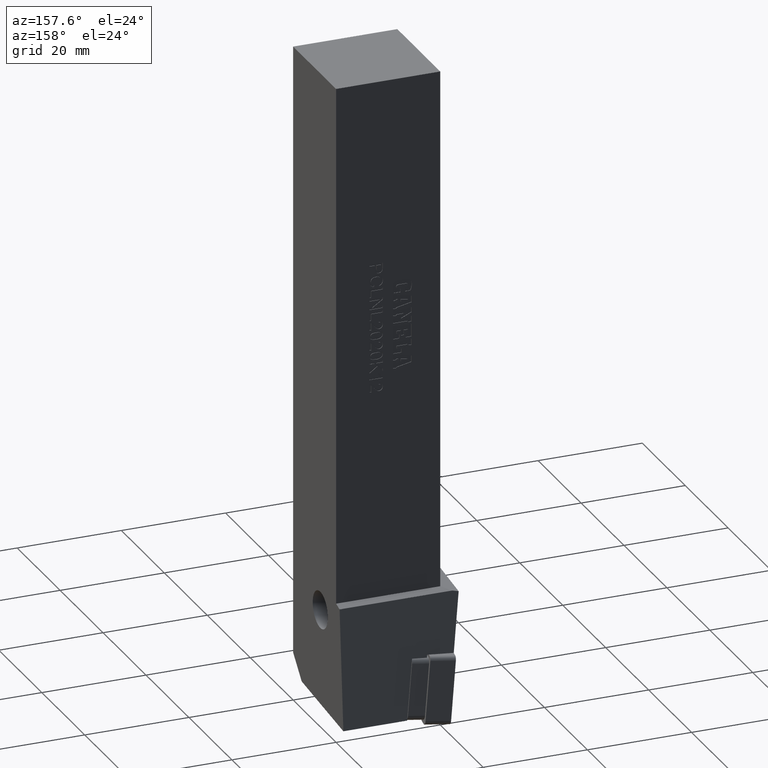
[diagram: clean part render]
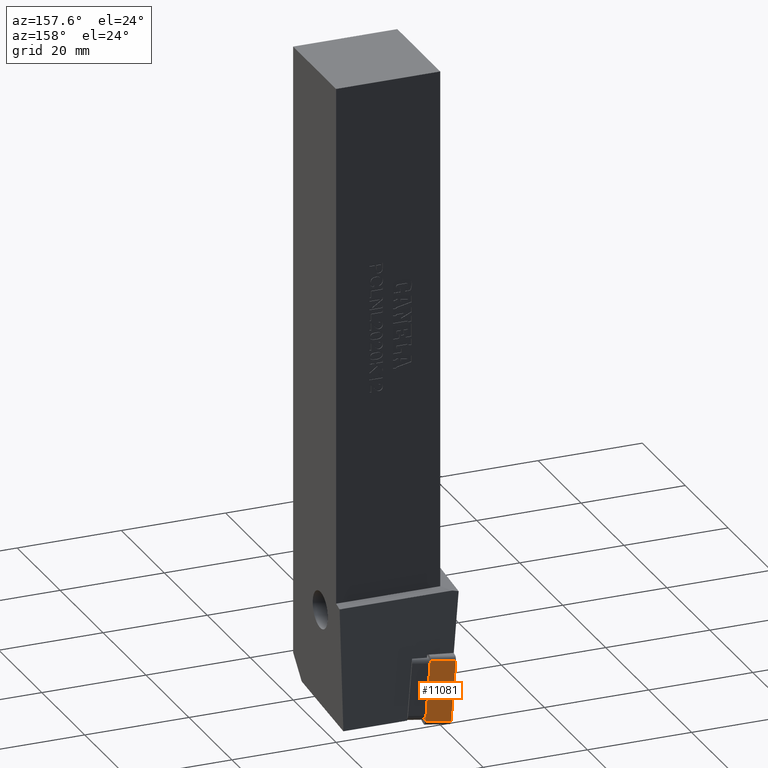
[diagram: same view with one face highlighted and labeled with its STEP entity id]
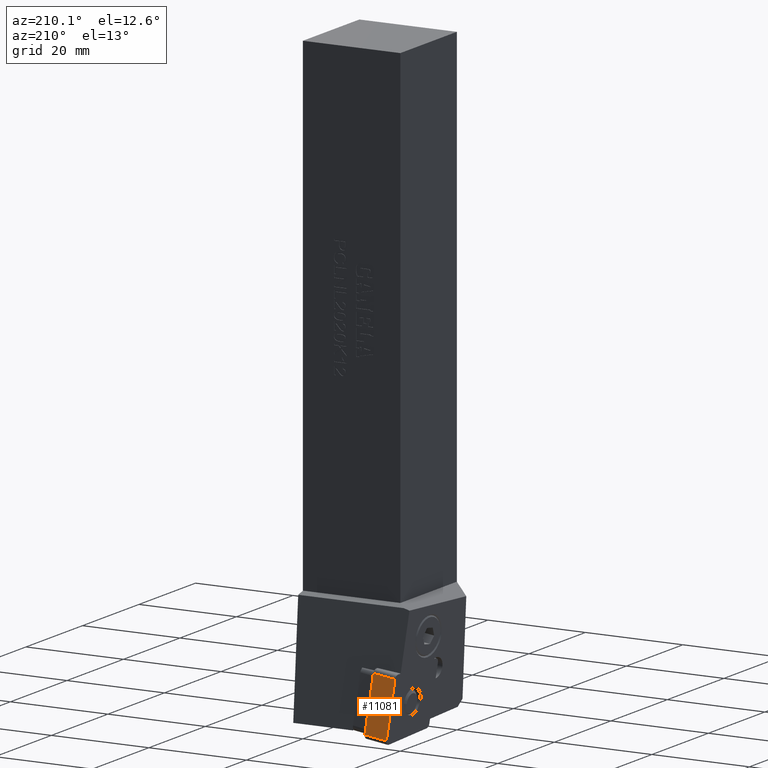
[diagram: same view with one face highlighted and labeled with its STEP entity id]
A machine part, auxiliary view. The second image highlights one B-rep face of the part: STEP entity #11081.
A second angle (auxiliary view) of the same face is appended — the face is thin or edge-on in the first view.
In plain terms, the highlighted planar face has unit normal (-0.0951, -0.9917, -0.0867).
Its self-contained STEP definition (entity closure, byte-faithful):
#11023=CARTESIAN_POINT('',(-6.535655642197709,-13.360282777251371,-4.76));
#11024=VERTEX_POINT('',#11023);
#11033=CARTESIAN_POINT('',(-6.535655642197709,-13.360282777251371,0.0));
#11034=VERTEX_POINT('',#11033);
#11042=CARTESIAN_POINT('',(-6.535655642197709,-13.360282777251371,0.0));
#11043=DIRECTION('',(0.0,0.0,-1.0));
#11044=VECTOR('',#11043,4.76);
#11045=LINE('',#11042,#11044);
#11046=EDGE_CURVE('',#11034,#11024,#11045,.T.);
#11051=CARTESIAN_POINT('',(-6.535655642197709,-13.360282777251371,0.0));
#11052=DIRECTION('',(0.17364817766693,0.984807753012208,0.0));
#11053=DIRECTION('',(0.0,0.0,1.0));
#11054=AXIS2_PLACEMENT_3D('',#11051,#11052,#11053);
#11055=PLANE('',#11054);
#11056=CARTESIAN_POINT('',(-17.635655642197715,-11.403053291387408,-4.76));
#11057=VERTEX_POINT('',#11056);
#11058=CARTESIAN_POINT('',(-6.535655642197709,-13.360282777251371,-4.76));
#11059=DIRECTION('',(-0.984807753012208,0.17364817766693,0.0));
#11060=VECTOR('',#11059,11.27123539193178);
#11061=LINE('',#11058,#11060);
#11062=EDGE_CURVE('',#11024,#11057,#11061,.T.);
#11063=ORIENTED_EDGE('',*,*,#11062,.F.);
#11064=ORIENTED_EDGE('',*,*,#11046,.F.);
#11065=CARTESIAN_POINT('',(-17.635655642197715,-11.403053291387408,0.0));
#11066=VERTEX_POINT('',#11065);
#11067=CARTESIAN_POINT('',(-6.535655642197709,-13.360282777251371,0.0));
#11068=DIRECTION('',(-0.984807753012208,0.17364817766693,0.0));
#11069=VECTOR('',#11068,11.27123539193178);
#11070=LINE('',#11067,#11069);
#11071=EDGE_CURVE('',#11034,#11066,#11070,.T.);
#11072=ORIENTED_EDGE('',*,*,#11071,.T.);
#11073=CARTESIAN_POINT('',(-17.635655642197715,-11.403053291387408,0.0));
#11074=DIRECTION('',(0.0,0.0,-1.0));
#11075=VECTOR('',#11074,4.76);
#11076=LINE('',#11073,#11075);
#11077=EDGE_CURVE('',#11066,#11057,#11076,.T.);
#11078=ORIENTED_EDGE('',*,*,#11077,.T.);
#11079=EDGE_LOOP('',(#11063,#11064,#11072,#11078));
#11080=FACE_OUTER_BOUND('',#11079,.T.);
#11081=ADVANCED_FACE('',(#11080),#11055,.F.);